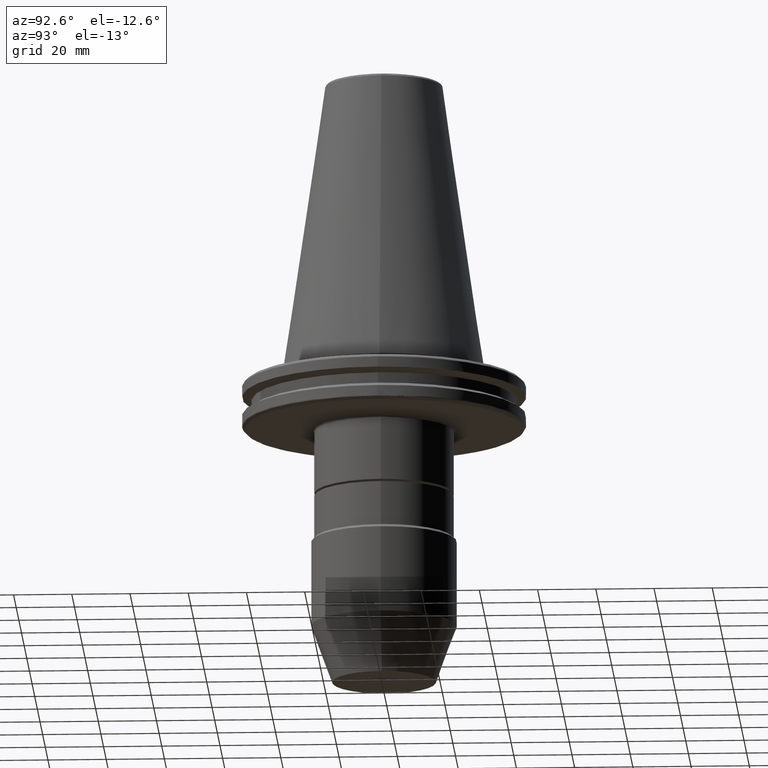
[diagram: clean part render]
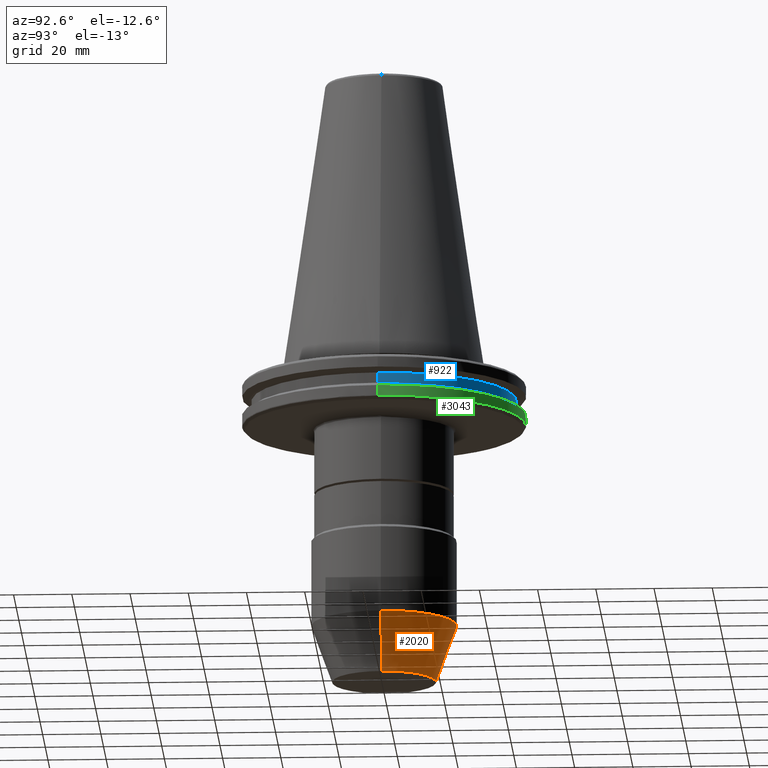
[diagram: same view with three faces highlighted in distinct colors, each labeled with its STEP entity id]
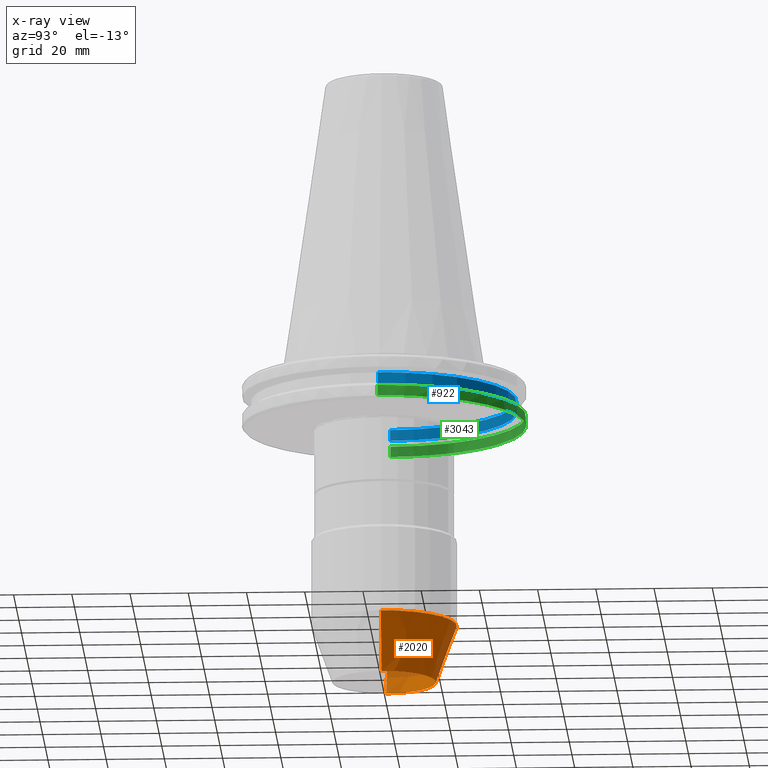
[diagram: x-ray of the same camera — body ghosted, the three highlighted faces saturated]
A machine part, auxiliary view with three faces highlighted in distinct colors.
The next image is the same camera in x-ray (body ghosted, the three faces saturated) — at least one of them is partly hidden behind the body in this view.
Their STEP definitions:

[orange] entity #2020 — the highlighted conical surface has half-angle 20 deg.
#112 = AXIS2_PLACEMENT_3D ( 'NONE', #2044, #1992, #1954 ) ;
#204 = LINE ( 'NONE', #786, #1637 ) ;
#232 = EDGE_LOOP ( 'NONE', ( #3021, #2390, #618, #1423 ) ) ;
#295 = CARTESIAN_POINT ( 'NONE',  ( -17.82499999999999900, 2.622274958674270100E-015, -108.0000000000000000 ) ) ;
#467 = DIRECTION ( 'NONE',  ( 1.000000000000000000, 0.0000000000000000000, 0.0000000000000000000 ) ) ;
#470 = DIRECTION ( 'NONE',  ( 0.0000000000000000000, -0.0000000000000000000, 1.000000000000000000 ) ) ;
#475 = CARTESIAN_POINT ( 'NONE',  ( 0.0000000000000000000, 0.0000000000000000000, -108.0000000000000000 ) ) ;
#533 = CIRCLE ( 'NONE', #1300, 17.82499999999999900 ) ;
#556 = LINE ( 'NONE', #2820, #2691 ) ;
#618 = ORIENTED_EDGE ( 'NONE', *, *, #2885, .F. ) ;
#722 = DIRECTION ( 'NONE',  ( 0.0000000000000000000, 0.0000000000000000000, 1.000000000000000000 ) ) ;
#754 = DIRECTION ( 'NONE',  ( 0.3420201433256630500, 0.0000000000000000000, 0.9396926207859104300 ) ) ;
#786 = CARTESIAN_POINT ( 'NONE',  ( 25.00000000000000000, 0.0000000000000000000, -88.28684951541271200 ) ) ;
#849 = EDGE_CURVE ( 'NONE', #2472, #1108, #533, .T. ) ;
#1059 = VERTEX_POINT ( 'NONE', #1726 ) ;
#1108 = VERTEX_POINT ( 'NONE', #295 ) ;
#1300 = AXIS2_PLACEMENT_3D ( 'NONE', #475, #470, #467 ) ;
#1304 = CIRCLE ( 'NONE', #2794, 25.00000000000000000 ) ;
#1384 = EDGE_CURVE ( 'NONE', #1108, #1059, #556, .T. ) ;
#1423 = ORIENTED_EDGE ( 'NONE', *, *, #1568, .F. ) ;
#1443 = VERTEX_POINT ( 'NONE', #2539 ) ;
#1557 = CARTESIAN_POINT ( 'NONE',  ( 17.82499999999999900, 0.0000000000000000000, -108.0000000000000000 ) ) ;
#1568 = EDGE_CURVE ( 'NONE', #2472, #1443, #204, .T. ) ;
#1637 = VECTOR ( 'NONE', #754, 1000.000000000000200 ) ;
#1726 = CARTESIAN_POINT ( 'NONE',  ( -25.00000000000000000, 3.061616997868383000E-015, -88.28684951541271200 ) ) ;
#1954 = DIRECTION ( 'NONE',  ( 1.000000000000000000, 0.0000000000000000000, 0.0000000000000000000 ) ) ;
#1992 = DIRECTION ( 'NONE',  ( 0.0000000000000000000, -0.0000000000000000000, 1.000000000000000000 ) ) ;
#2020 = ADVANCED_FACE ( 'NONE', ( #2490 ), #3082, .T. ) ;
#2044 = CARTESIAN_POINT ( 'NONE',  ( 0.0000000000000000000, 0.0000000000000000000, -88.28684951541271200 ) ) ;
#2347 = CARTESIAN_POINT ( 'NONE',  ( 0.0000000000000000000, 0.0000000000000000000, -88.28684951541271200 ) ) ;
#2390 = ORIENTED_EDGE ( 'NONE', *, *, #1384, .T. ) ;
#2472 = VERTEX_POINT ( 'NONE', #1557 ) ;
#2490 = FACE_OUTER_BOUND ( 'NONE', #232, .T. ) ;
#2539 = CARTESIAN_POINT ( 'NONE',  ( 25.00000000000000000, 0.0000000000000000000, -88.28684951541271200 ) ) ;
#2614 = DIRECTION ( 'NONE',  ( 1.000000000000000000, 0.0000000000000000000, 0.0000000000000000000 ) ) ;
#2691 = VECTOR ( 'NONE', #2780, 1000.000000000000200 ) ;
#2780 = DIRECTION ( 'NONE',  ( -0.3420201433256630500, 4.188538737676922700E-017, 0.9396926207859104300 ) ) ;
#2794 = AXIS2_PLACEMENT_3D ( 'NONE', #2347, #722, #2614 ) ;
#2820 = CARTESIAN_POINT ( 'NONE',  ( -25.00000000000000000, 3.061616997868383000E-015, -88.28684951541271200 ) ) ;
#2885 = EDGE_CURVE ( 'NONE', #1443, #1059, #1304, .T. ) ;
#3021 = ORIENTED_EDGE ( 'NONE', *, *, #849, .T. ) ;
#3082 = CONICAL_SURFACE ( 'NONE', #112, 25.00000000000000000, 0.3490658503988599600 ) ;

[blue] entity #922 — the highlighted cylindrical surface (partial cylindrical patch) has radius 45.5 mm, axis along (0, 0, 1).
#49 = ORIENTED_EDGE ( 'NONE', *, *, #934, .F. ) ;
#68 = AXIS2_PLACEMENT_3D ( 'NONE', #2858, #2848, #2840 ) ;
#114 = VECTOR ( 'NONE', #667, 1000.000000000000000 ) ;
#222 = CIRCLE ( 'NONE', #2641, 45.50000000000000000 ) ;
#362 = CYLINDRICAL_SURFACE ( 'NONE', #3001, 45.50000000000000000 ) ;
#435 = ORIENTED_EDGE ( 'NONE', *, *, #1827, .T. ) ;
#446 = FACE_OUTER_BOUND ( 'NONE', #1324, .T. ) ;
#626 = DIRECTION ( 'NONE',  ( 1.000000000000000000, 0.0000000000000000000, 0.0000000000000000000 ) ) ;
#651 = VERTEX_POINT ( 'NONE', #947 ) ;
#667 = DIRECTION ( 'NONE',  ( 0.0000000000000000000, 0.0000000000000000000, 1.000000000000000000 ) ) ;
#670 = CIRCLE ( 'NONE', #68, 45.50000000000000000 ) ;
#716 = DIRECTION ( 'NONE',  ( 0.0000000000000000000, 0.0000000000000000000, 1.000000000000000000 ) ) ;
#725 = CARTESIAN_POINT ( 'NONE',  ( -45.50000000000000000, 5.572142936120457100E-015, 113.5216080541959500 ) ) ;
#828 = LINE ( 'NONE', #725, #114 ) ;
#922 = ADVANCED_FACE ( 'NONE', ( #446 ), #362, .T. ) ;
#934 = EDGE_CURVE ( 'NONE', #651, #2217, #2519, .T. ) ;
#947 = CARTESIAN_POINT ( 'NONE',  ( 45.50000000000000000, 0.0000000000000000000, -13.00000000000001100 ) ) ;
#1143 = CARTESIAN_POINT ( 'NONE',  ( 45.50000000000000000, 0.0000000000000000000, -9.199999999999999300 ) ) ;
#1274 = VERTEX_POINT ( 'NONE', #3133 ) ;
#1324 = EDGE_LOOP ( 'NONE', ( #435, #1710, #2939, #49 ) ) ;
#1356 = DIRECTION ( 'NONE',  ( 1.000000000000000000, 0.0000000000000000000, 0.0000000000000000000 ) ) ;
#1368 = DIRECTION ( 'NONE',  ( -0.0000000000000000000, -0.0000000000000000000, -1.000000000000000000 ) ) ;
#1377 = CARTESIAN_POINT ( 'NONE',  ( 0.0000000000000000000, 0.0000000000000000000, -9.199999999999999300 ) ) ;
#1404 = DIRECTION ( 'NONE',  ( 0.0000000000000000000, 0.0000000000000000000, 1.000000000000000000 ) ) ;
#1438 = CARTESIAN_POINT ( 'NONE',  ( 0.0000000000000000000, 0.0000000000000000000, 113.5216080541959500 ) ) ;
#1591 = EDGE_CURVE ( 'NONE', #1274, #3142, #828, .T. ) ;
#1710 = ORIENTED_EDGE ( 'NONE', *, *, #1591, .T. ) ;
#1827 = EDGE_CURVE ( 'NONE', #651, #1274, #670, .T. ) ;
#2217 = VERTEX_POINT ( 'NONE', #1143 ) ;
#2425 = VECTOR ( 'NONE', #716, 1000.000000000000000 ) ;
#2519 = LINE ( 'NONE', #2814, #2425 ) ;
#2641 = AXIS2_PLACEMENT_3D ( 'NONE', #1377, #1368, #1356 ) ;
#2750 = EDGE_CURVE ( 'NONE', #3142, #2217, #222, .T. ) ;
#2814 = CARTESIAN_POINT ( 'NONE',  ( 45.50000000000000000, 0.0000000000000000000, 113.5216080541959500 ) ) ;
#2840 = DIRECTION ( 'NONE',  ( 1.000000000000000000, 0.0000000000000000000, 0.0000000000000000000 ) ) ;
#2848 = DIRECTION ( 'NONE',  ( 0.0000000000000000000, 0.0000000000000000000, 1.000000000000000000 ) ) ;
#2858 = CARTESIAN_POINT ( 'NONE',  ( 0.0000000000000000000, 0.0000000000000000000, -13.00000000000001100 ) ) ;
#2939 = ORIENTED_EDGE ( 'NONE', *, *, #2750, .T. ) ;
#3001 = AXIS2_PLACEMENT_3D ( 'NONE', #1438, #1404, #626 ) ;
#3133 = CARTESIAN_POINT ( 'NONE',  ( -45.50000000000000000, 5.572142936120457100E-015, -13.00000000000001100 ) ) ;
#3142 = VERTEX_POINT ( 'NONE', #3152 ) ;
#3152 = CARTESIAN_POINT ( 'NONE',  ( -45.50000000000000000, 5.572142936120457100E-015, -9.199999999999999300 ) ) ;

[green] entity #3043 — the highlighted cylindrical surface (partial cylindrical patch) has radius 48.75 mm, axis along (0, 0, 1).
#25 = EDGE_CURVE ( 'NONE', #966, #3394, #2854, .T. ) ;
#37 = CIRCLE ( 'NONE', #2245, 48.75000000000000000 ) ;
#256 = CARTESIAN_POINT ( 'NONE',  ( -29.99999999999999600, 38.42606537234850400, -17.93431457505076300 ) ) ;
#277 = AXIS2_PLACEMENT_3D ( 'NONE', #2679, #2667, #2655 ) ;
#284 = ORIENTED_EDGE ( 'NONE', *, *, #438, .F. ) ;
#324 = CARTESIAN_POINT ( 'NONE',  ( -46.83796378645139000, 13.51915856623736200, -17.93431457505076300 ) ) ;
#416 = AXIS2_PLACEMENT_3D ( 'NONE', #657, #2155, #2151 ) ;
#438 = EDGE_CURVE ( 'NONE', #771, #1486, #1272, .T. ) ;
#593 = VERTEX_POINT ( 'NONE', #1519 ) ;
#607 = DIRECTION ( 'NONE',  ( 0.0000000000000000000, 0.0000000000000000000, 1.000000000000000000 ) ) ;
#617 = ORIENTED_EDGE ( 'NONE', *, *, #1782, .T. ) ;
#640 = CARTESIAN_POINT ( 'NONE',  ( -48.75000000000000000, 5.970153145843347100E-015, 113.5216080541959500 ) ) ;
#657 = CARTESIAN_POINT ( 'NONE',  ( 0.0000000000000000000, 0.0000000000000000000, -14.34759526419166200 ) ) ;
#681 = EDGE_CURVE ( 'NONE', #3394, #771, #854, .T. ) ;
#719 = CARTESIAN_POINT ( 'NONE',  ( 48.75000000000001400, 0.0000000000000000000, -14.34759526419166200 ) ) ;
#723 = EDGE_CURVE ( 'NONE', #593, #1486, #3448, .T. ) ;
#770 = DIRECTION ( 'NONE',  ( 1.000000000000000000, 0.0000000000000000000, 0.0000000000000000000 ) ) ;
#771 = VERTEX_POINT ( 'NONE', #719 ) ;
#815 = ORIENTED_EDGE ( 'NONE', *, *, #1950, .T. ) ;
#854 = LINE ( 'NONE', #3206, #2228 ) ;
#966 = VERTEX_POINT ( 'NONE', #1371 ) ;
#1023 = CARTESIAN_POINT ( 'NONE',  ( 48.75000000000000000, 0.0000000000000000000, -17.93431457505076300 ) ) ;
#1069 = VERTEX_POINT ( 'NONE', #324 ) ;
#1220 = CARTESIAN_POINT ( 'NONE',  ( 0.0000000000000000000, 0.0000000000000000000, -17.93431457505076300 ) ) ;
#1250 = CIRCLE ( 'NONE', #277, 48.75000000000000000 ) ;
#1272 = CIRCLE ( 'NONE', #416, 48.75000000000000000 ) ;
#1357 = VERTEX_POINT ( 'NONE', #2853 ) ;
#1371 = CARTESIAN_POINT ( 'NONE',  ( 46.87302845420868600, 13.39707817141269600, -17.93431457505076300 ) ) ;
#1386 = AXIS2_PLACEMENT_3D ( 'NONE', #1220, #1757, #1729 ) ;
#1390 = ORIENTED_EDGE ( 'NONE', *, *, #25, .F. ) ;
#1429 = AXIS2_PLACEMENT_3D ( 'NONE', #3011, #3008, #3005 ) ;
#1430 = EDGE_CURVE ( 'NONE', #1357, #3451, #1250, .T. ) ;
#1486 = VERTEX_POINT ( 'NONE', #2456 ) ;
#1519 = CARTESIAN_POINT ( 'NONE',  ( -48.75000000000000000, 5.970153145843347100E-015, -17.93431457505076300 ) ) ;
#1538 = CIRCLE ( 'NONE', #3058, 48.75000000000000000 ) ;
#1729 = DIRECTION ( 'NONE',  ( -1.000000000000000000, 0.0000000000000000000, 0.0000000000000000000 ) ) ;
#1746 = ORIENTED_EDGE ( 'NONE', *, *, #723, .T. ) ;
#1757 = DIRECTION ( 'NONE',  ( -0.0000000000000000000, -0.0000000000000000000, -1.000000000000000000 ) ) ;
#1782 = EDGE_CURVE ( 'NONE', #966, #3451, #3420, .T. ) ;
#1866 = CYLINDRICAL_SURFACE ( 'NONE', #3175, 48.75000000000000000 ) ;
#1901 = EDGE_CURVE ( 'NONE', #593, #1069, #37, .T. ) ;
#1950 = EDGE_CURVE ( 'NONE', #1357, #1069, #1538, .T. ) ;
#2133 = CARTESIAN_POINT ( 'NONE',  ( 0.0000000000000000000, 0.0000000000000000000, 113.5216080541959500 ) ) ;
#2151 = DIRECTION ( 'NONE',  ( -1.000000000000000000, 0.0000000000000000000, 0.0000000000000000000 ) ) ;
#2155 = DIRECTION ( 'NONE',  ( -0.0000000000000000000, -0.0000000000000000000, 1.000000000000000000 ) ) ;
#2190 = ORIENTED_EDGE ( 'NONE', *, *, #1430, .F. ) ;
#2228 = VECTOR ( 'NONE', #3073, 1000.000000000000000 ) ;
#2245 = AXIS2_PLACEMENT_3D ( 'NONE', #2638, #2629, #2609 ) ;
#2423 = EDGE_LOOP ( 'NONE', ( #2514, #1746, #284, #2548, #1390, #617, #2190, #815 ) ) ;
#2456 = CARTESIAN_POINT ( 'NONE',  ( -48.75000000000001400, 5.970153145843347900E-015, -14.34759526419166200 ) ) ;
#2506 = DIRECTION ( 'NONE',  ( 1.000000000000000000, 0.0000000000000000000, 0.0000000000000000000 ) ) ;
#2509 = FACE_OUTER_BOUND ( 'NONE', #2423, .T. ) ;
#2512 = DIRECTION ( 'NONE',  ( 0.0000000000000000000, 0.0000000000000000000, 1.000000000000000000 ) ) ;
#2514 = ORIENTED_EDGE ( 'NONE', *, *, #1901, .F. ) ;
#2521 = CARTESIAN_POINT ( 'NONE',  ( 0.0000000000000000000, 0.0000000000000000000, -17.93431457505076300 ) ) ;
#2548 = ORIENTED_EDGE ( 'NONE', *, *, #681, .F. ) ;
#2609 = DIRECTION ( 'NONE',  ( -1.000000000000000000, 0.0000000000000000000, 0.0000000000000000000 ) ) ;
#2629 = DIRECTION ( 'NONE',  ( -0.0000000000000000000, -0.0000000000000000000, -1.000000000000000000 ) ) ;
#2638 = CARTESIAN_POINT ( 'NONE',  ( 0.0000000000000000000, 0.0000000000000000000, -17.93431457505076300 ) ) ;
#2655 = DIRECTION ( 'NONE',  ( -1.000000000000000000, 0.0000000000000000000, 0.0000000000000000000 ) ) ;
#2667 = DIRECTION ( 'NONE',  ( -0.0000000000000000000, -0.0000000000000000000, -1.000000000000000000 ) ) ;
#2679 = CARTESIAN_POINT ( 'NONE',  ( 0.0000000000000000000, 0.0000000000000000000, -17.93431457505076300 ) ) ;
#2758 = VECTOR ( 'NONE', #607, 1000.000000000000000 ) ;
#2853 = CARTESIAN_POINT ( 'NONE',  ( -38.42606537234849600, 30.00000000000000000, -17.93431457505076300 ) ) ;
#2854 = CIRCLE ( 'NONE', #1386, 48.75000000000000000 ) ;
#3005 = DIRECTION ( 'NONE',  ( 1.000000000000000000, 0.0000000000000000000, 0.0000000000000000000 ) ) ;
#3008 = DIRECTION ( 'NONE',  ( 0.0000000000000000000, 0.0000000000000000000, 1.000000000000000000 ) ) ;
#3011 = CARTESIAN_POINT ( 'NONE',  ( 0.0000000000000000000, 0.0000000000000000000, -17.93431457505076300 ) ) ;
#3043 = ADVANCED_FACE ( 'NONE', ( #2509 ), #1866, .T. ) ;
#3058 = AXIS2_PLACEMENT_3D ( 'NONE', #2521, #2512, #2506 ) ;
#3073 = DIRECTION ( 'NONE',  ( 0.0000000000000000000, 0.0000000000000000000, 1.000000000000000000 ) ) ;
#3175 = AXIS2_PLACEMENT_3D ( 'NONE', #2133, #3441, #770 ) ;
#3206 = CARTESIAN_POINT ( 'NONE',  ( 48.75000000000000000, 0.0000000000000000000, 113.5216080541959500 ) ) ;
#3394 = VERTEX_POINT ( 'NONE', #1023 ) ;
#3420 = CIRCLE ( 'NONE', #1429, 48.75000000000000000 ) ;
#3441 = DIRECTION ( 'NONE',  ( 0.0000000000000000000, 0.0000000000000000000, 1.000000000000000000 ) ) ;
#3448 = LINE ( 'NONE', #640, #2758 ) ;
#3451 = VERTEX_POINT ( 'NONE', #256 ) ;